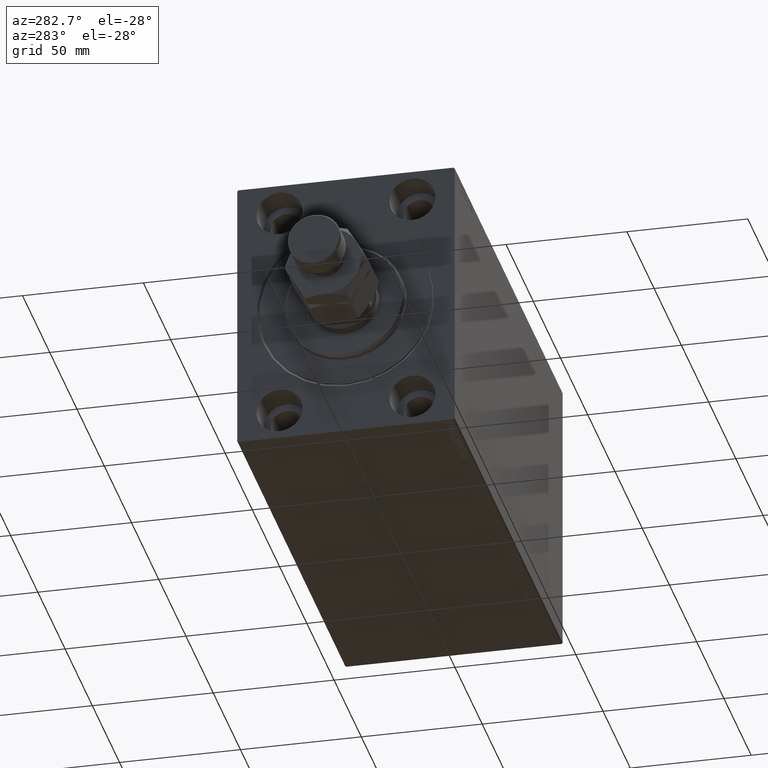
[diagram: clean part render]
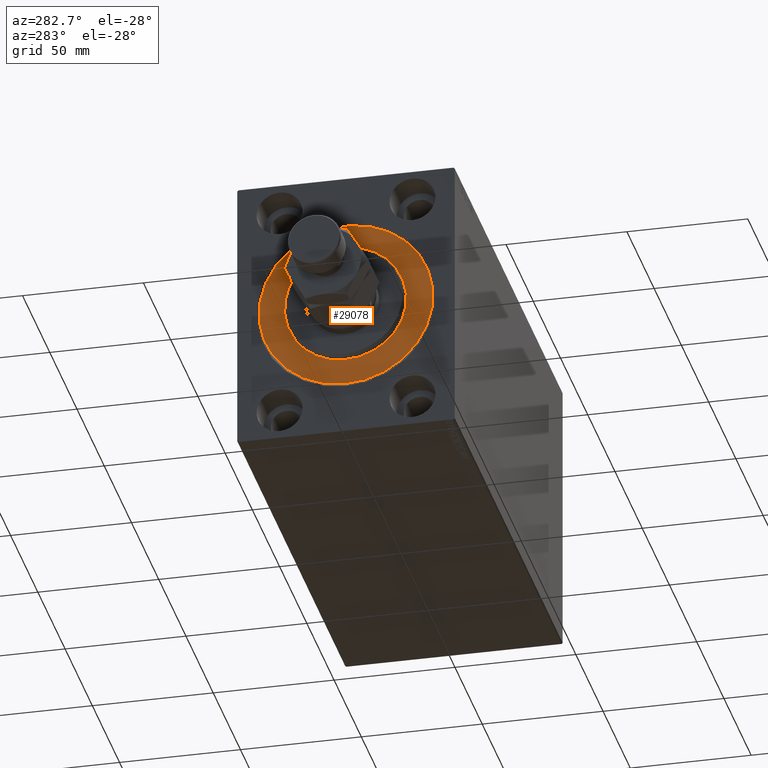
[diagram: same view with one face highlighted and labeled with its STEP entity id]
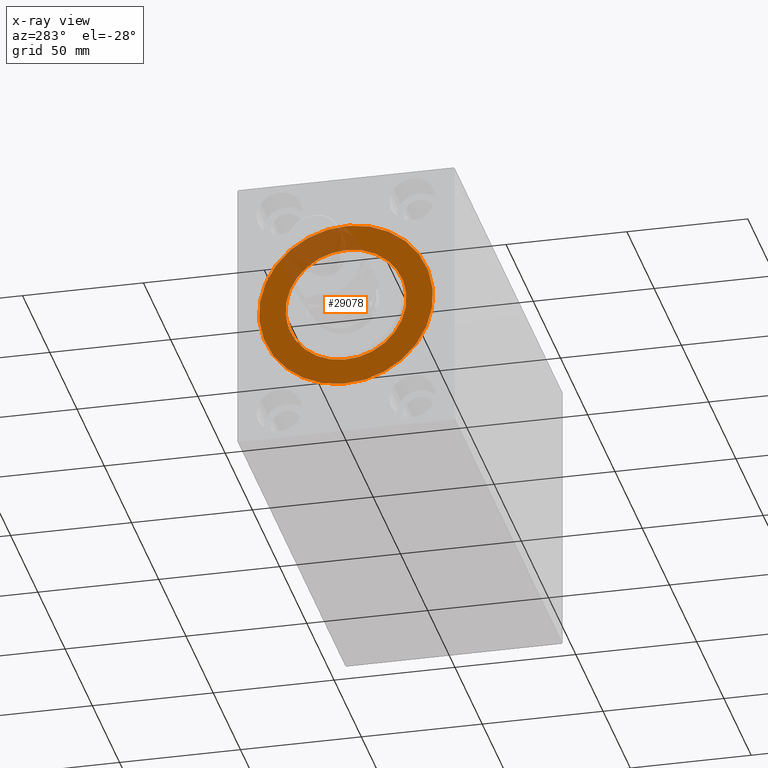
[diagram: x-ray of the same camera — body ghosted, the highlighted face saturated]
A machine part, auxiliary view. The second image highlights one B-rep face of the part: STEP entity #29078.
The next image is the same camera in x-ray: the body ghosted, the highlighted face saturated — about 16% of this face is hidden behind the body in this view.
In plain terms, the highlighted planar face has unit normal (1, 0, -0).
Its self-contained STEP definition (entity closure, byte-faithful):
#3502 = CARTESIAN_POINT ( 'NONE',  ( 0.000000000000000000, 0.000000000000000000, 0.000000000000000000 ) ) ;
#3935 = EDGE_CURVE ( 'NONE', #44208, #19496, #6843, .T. ) ;
#4504 = DIRECTION ( 'NONE',  ( 1.000000000000000000, -0.000000000000000000, 0.000000000000000000 ) ) ;
#5377 = DIRECTION ( 'NONE',  ( 0.000000000000000000, 0.000000000000000000, 1.000000000000000000 ) ) ;
#5782 = VERTEX_POINT ( 'NONE', #31474 ) ;
#6843 = CIRCLE ( 'NONE', #17139, 36.00000000000000000 ) ;
#7529 = ORIENTED_EDGE ( 'NONE', *, *, #10735, .F. ) ;
#9504 = PLANE ( 'NONE',  #12446 ) ;
#9553 = EDGE_CURVE ( 'NONE', #19496, #44208, #32748, .T. ) ;
#10735 = EDGE_CURVE ( 'NONE', #5782, #37424, #27501, .T. ) ;
#11678 = CIRCLE ( 'NONE', #21241, 25.00000000000000000 ) ;
#12446 = AXIS2_PLACEMENT_3D ( 'NONE', #3502, #42157, #41933 ) ;
#15481 = ORIENTED_EDGE ( 'NONE', *, *, #23737, .F. ) ;
#15747 = AXIS2_PLACEMENT_3D ( 'NONE', #27276, #20834, #44770 ) ;
#16676 = EDGE_LOOP ( 'NONE', ( #7529, #15481 ) ) ;
#17139 = AXIS2_PLACEMENT_3D ( 'NONE', #19184, #18740, #32770 ) ;
#18058 = AXIS2_PLACEMENT_3D ( 'NONE', #26536, #29988, #5377 ) ;
#18740 = DIRECTION ( 'NONE',  ( -1.000000000000000000, 0.000000000000000000, 0.000000000000000000 ) ) ;
#19184 = CARTESIAN_POINT ( 'NONE',  ( 0.000000000000000000, 0.000000000000000000, 0.000000000000000000 ) ) ;
#19496 = VERTEX_POINT ( 'NONE', #41714 ) ;
#20834 = DIRECTION ( 'NONE',  ( 1.000000000000000000, -0.000000000000000000, 0.000000000000000000 ) ) ;
#21241 = AXIS2_PLACEMENT_3D ( 'NONE', #28888, #4504, #29120 ) ;
#22209 = CARTESIAN_POINT ( 'NONE',  ( 0.000000000000000000, 3.061616997868383043E-15, -25.00000000000000000 ) ) ;
#22610 = ORIENTED_EDGE ( 'NONE', *, *, #3935, .F. ) ;
#23737 = EDGE_CURVE ( 'NONE', #37424, #5782, #11678, .T. ) ;
#26536 = CARTESIAN_POINT ( 'NONE',  ( 0.000000000000000000, 0.000000000000000000, 0.000000000000000000 ) ) ;
#26989 = FACE_OUTER_BOUND ( 'NONE', #29322, .T. ) ;
#27276 = CARTESIAN_POINT ( 'NONE',  ( 0.000000000000000000, 0.000000000000000000, 0.000000000000000000 ) ) ;
#27501 = CIRCLE ( 'NONE', #15747, 25.00000000000000000 ) ;
#28888 = CARTESIAN_POINT ( 'NONE',  ( 0.000000000000000000, 0.000000000000000000, 0.000000000000000000 ) ) ;
#29078 = ADVANCED_FACE ( 'NONE', ( #30440, #26989 ), #9504, .F. ) ;
#29120 = DIRECTION ( 'NONE',  ( 0.000000000000000000, 0.000000000000000000, -1.000000000000000000 ) ) ;
#29322 = EDGE_LOOP ( 'NONE', ( #22610, #32735 ) ) ;
#29988 = DIRECTION ( 'NONE',  ( -1.000000000000000000, 0.000000000000000000, 0.000000000000000000 ) ) ;
#30440 = FACE_BOUND ( 'NONE', #16676, .T. ) ;
#31474 = CARTESIAN_POINT ( 'NONE',  ( 0.000000000000000000, 0.000000000000000000, 25.00000000000000000 ) ) ;
#32735 = ORIENTED_EDGE ( 'NONE', *, *, #9553, .F. ) ;
#32748 = CIRCLE ( 'NONE', #18058, 36.00000000000000000 ) ;
#32770 = DIRECTION ( 'NONE',  ( 0.000000000000000000, 0.000000000000000000, 1.000000000000000000 ) ) ;
#37424 = VERTEX_POINT ( 'NONE', #22209 ) ;
#41714 = CARTESIAN_POINT ( 'NONE',  ( 0.000000000000000000, 4.408728476930470856E-15, 36.00000000000000000 ) ) ;
#41933 = DIRECTION ( 'NONE',  ( 0.000000000000000000, 0.000000000000000000, 1.000000000000000000 ) ) ;
#42157 = DIRECTION ( 'NONE',  ( -1.000000000000000000, 0.000000000000000000, 0.000000000000000000 ) ) ;
#42315 = CARTESIAN_POINT ( 'NONE',  ( 0.000000000000000000, 0.000000000000000000, -36.00000000000000000 ) ) ;
#44208 = VERTEX_POINT ( 'NONE', #42315 ) ;
#44770 = DIRECTION ( 'NONE',  ( 0.000000000000000000, 0.000000000000000000, -1.000000000000000000 ) ) ;